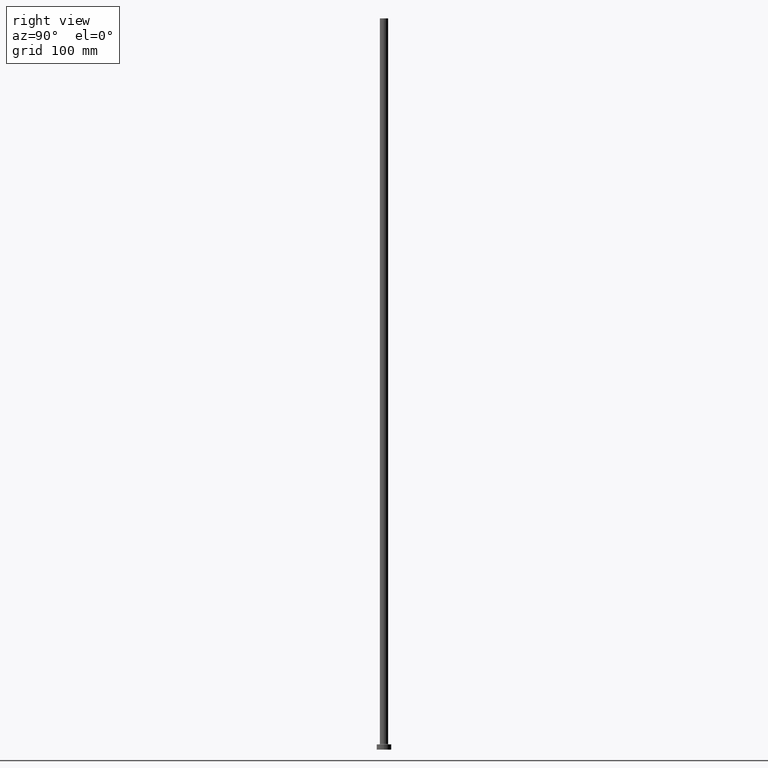
[diagram: clean part render]
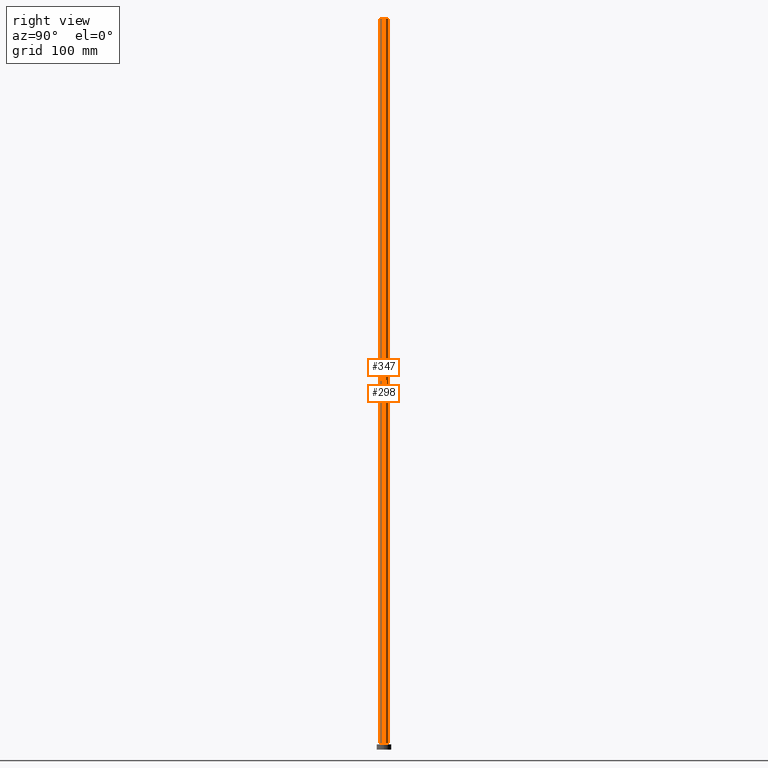
[diagram: same view with one multi-face feature highlighted, each face labeled with its STEP entity id]
A machine part, right view. The highlighted faces form ONE feature: a constant-radius fillet chain: 2 tangent blend faces with common blend radius 4 mm. The faces share edges in the B-rep.
Their STEP definitions:
[1] entity #298 (Cylinder):
#5 = ORIENTED_EDGE ( 'NONE', *, *, #360, .F. ) ;
#18 = DIRECTION ( 'NONE',  ( -0.000000000000000000, -0.000000000000000000, -1.000000000000000000 ) ) ;
#40 = ORIENTED_EDGE ( 'NONE', *, *, #330, .F. ) ;
#57 = LINE ( 'NONE', #198, #251 ) ;
#62 = DIRECTION ( 'NONE',  ( -1.000000000000000000, 0.000000000000000000, 0.000000000000000000 ) ) ;
#70 = AXIS2_PLACEMENT_3D ( 'NONE', #158, #268, #407 ) ;
#82 = CARTESIAN_POINT ( 'NONE',  ( 4.000000000000000000, 4.898587196589412829E-16, 5.499999999999949374 ) ) ;
#111 = CARTESIAN_POINT ( 'NONE',  ( -4.000000000000000000, 0.000000000000000000, 700.0000000000000000 ) ) ;
#120 = CARTESIAN_POINT ( 'NONE',  ( 4.000000000000000000, 4.898587196589412829E-16, 700.0000000000000000 ) ) ;
#143 = DIRECTION ( 'NONE',  ( 0.000000000000000000, 0.000000000000000000, 1.000000000000000000 ) ) ;
#158 = CARTESIAN_POINT ( 'NONE',  ( 0.000000000000000000, 0.000000000000000000, 700.0000000000000000 ) ) ;
#170 = AXIS2_PLACEMENT_3D ( 'NONE', #448, #405, #62 ) ;
#176 = DIRECTION ( 'NONE',  ( 1.000000000000000000, 0.000000000000000000, 0.000000000000000000 ) ) ;
#179 = VERTEX_POINT ( 'NONE', #358 ) ;
#190 = AXIS2_PLACEMENT_3D ( 'NONE', #212, #143, #176 ) ;
#198 = CARTESIAN_POINT ( 'NONE',  ( -4.000000000000000000, 0.000000000000000000, 700.0000000000000000 ) ) ;
#200 = ORIENTED_EDGE ( 'NONE', *, *, #208, .T. ) ;
#201 = CYLINDRICAL_SURFACE ( 'NONE', #170, 4.000000000000000000 ) ;
#208 = EDGE_CURVE ( 'NONE', #230, #376, #328, .T. ) ;
#212 = CARTESIAN_POINT ( 'NONE',  ( 0.000000000000000000, 0.000000000000000000, 5.499999999999949374 ) ) ;
#230 = VERTEX_POINT ( 'NONE', #82 ) ;
#246 = VERTEX_POINT ( 'NONE', #111 ) ;
#251 = VECTOR ( 'NONE', #18, 1000.000000000000000 ) ;
#265 = FACE_OUTER_BOUND ( 'NONE', #398, .T. ) ;
#268 = DIRECTION ( 'NONE',  ( 0.000000000000000000, 0.000000000000000000, 1.000000000000000000 ) ) ;
#272 = EDGE_CURVE ( 'NONE', #179, #230, #433, .T. ) ;
#298 = ADVANCED_FACE ( 'NONE', ( #265 ), #201, .T. ) ;
#304 = VECTOR ( 'NONE', #443, 1000.000000000000000 ) ;
#311 = ORIENTED_EDGE ( 'NONE', *, *, #272, .T. ) ;
#328 = CIRCLE ( 'NONE', #190, 4.000000000000000000 ) ;
#330 = EDGE_CURVE ( 'NONE', #246, #376, #57, .T. ) ;
#358 = CARTESIAN_POINT ( 'NONE',  ( 4.000000000000000000, 4.898587196589412829E-16, 700.0000000000000000 ) ) ;
#359 = CIRCLE ( 'NONE', #70, 4.000000000000000000 ) ;
#360 = EDGE_CURVE ( 'NONE', #179, #246, #359, .T. ) ;
#376 = VERTEX_POINT ( 'NONE', #411 ) ;
#398 = EDGE_LOOP ( 'NONE', ( #5, #311, #200, #40 ) ) ;
#405 = DIRECTION ( 'NONE',  ( -0.000000000000000000, -0.000000000000000000, -1.000000000000000000 ) ) ;
#407 = DIRECTION ( 'NONE',  ( 1.000000000000000000, 0.000000000000000000, 0.000000000000000000 ) ) ;
#411 = CARTESIAN_POINT ( 'NONE',  ( -4.000000000000000000, 0.000000000000000000, 5.499999999999949374 ) ) ;
#433 = LINE ( 'NONE', #120, #304 ) ;
#443 = DIRECTION ( 'NONE',  ( -0.000000000000000000, -0.000000000000000000, -1.000000000000000000 ) ) ;
#448 = CARTESIAN_POINT ( 'NONE',  ( 0.000000000000000000, 0.000000000000000000, 700.0000000000000000 ) ) ;
[2] entity #347 (Cylinder):
#14 = DIRECTION ( 'NONE',  ( 0.000000000000000000, 0.000000000000000000, 1.000000000000000000 ) ) ;
#15 = EDGE_CURVE ( 'NONE', #376, #230, #383, .T. ) ;
#18 = DIRECTION ( 'NONE',  ( -0.000000000000000000, -0.000000000000000000, -1.000000000000000000 ) ) ;
#19 = CARTESIAN_POINT ( 'NONE',  ( 0.000000000000000000, 0.000000000000000000, 700.0000000000000000 ) ) ;
#24 = FACE_OUTER_BOUND ( 'NONE', #63, .T. ) ;
#51 = ORIENTED_EDGE ( 'NONE', *, *, #330, .T. ) ;
#57 = LINE ( 'NONE', #198, #251 ) ;
#63 = EDGE_LOOP ( 'NONE', ( #151, #254, #51, #382 ) ) ;
#80 = DIRECTION ( 'NONE',  ( 1.000000000000000000, 0.000000000000000000, 0.000000000000000000 ) ) ;
#82 = CARTESIAN_POINT ( 'NONE',  ( 4.000000000000000000, 4.898587196589412829E-16, 5.499999999999949374 ) ) ;
#108 = AXIS2_PLACEMENT_3D ( 'NONE', #216, #14, #80 ) ;
#111 = CARTESIAN_POINT ( 'NONE',  ( -4.000000000000000000, 0.000000000000000000, 700.0000000000000000 ) ) ;
#120 = CARTESIAN_POINT ( 'NONE',  ( 4.000000000000000000, 4.898587196589412829E-16, 700.0000000000000000 ) ) ;
#121 = DIRECTION ( 'NONE',  ( 0.000000000000000000, 0.000000000000000000, 1.000000000000000000 ) ) ;
#151 = ORIENTED_EDGE ( 'NONE', *, *, #272, .F. ) ;
#156 = DIRECTION ( 'NONE',  ( -0.000000000000000000, -0.000000000000000000, -1.000000000000000000 ) ) ;
#179 = VERTEX_POINT ( 'NONE', #358 ) ;
#193 = CYLINDRICAL_SURFACE ( 'NONE', #250, 4.000000000000000000 ) ;
#198 = CARTESIAN_POINT ( 'NONE',  ( -4.000000000000000000, 0.000000000000000000, 700.0000000000000000 ) ) ;
#216 = CARTESIAN_POINT ( 'NONE',  ( 0.000000000000000000, 0.000000000000000000, 5.499999999999949374 ) ) ;
#227 = AXIS2_PLACEMENT_3D ( 'NONE', #444, #121, #335 ) ;
#230 = VERTEX_POINT ( 'NONE', #82 ) ;
#246 = VERTEX_POINT ( 'NONE', #111 ) ;
#250 = AXIS2_PLACEMENT_3D ( 'NONE', #19, #156, #338 ) ;
#251 = VECTOR ( 'NONE', #18, 1000.000000000000000 ) ;
#254 = ORIENTED_EDGE ( 'NONE', *, *, #351, .F. ) ;
#272 = EDGE_CURVE ( 'NONE', #179, #230, #433, .T. ) ;
#304 = VECTOR ( 'NONE', #443, 1000.000000000000000 ) ;
#330 = EDGE_CURVE ( 'NONE', #246, #376, #57, .T. ) ;
#335 = DIRECTION ( 'NONE',  ( 1.000000000000000000, 0.000000000000000000, 0.000000000000000000 ) ) ;
#338 = DIRECTION ( 'NONE',  ( -1.000000000000000000, 0.000000000000000000, 0.000000000000000000 ) ) ;
#347 = ADVANCED_FACE ( 'NONE', ( #24 ), #193, .T. ) ;
#351 = EDGE_CURVE ( 'NONE', #246, #179, #458, .T. ) ;
#358 = CARTESIAN_POINT ( 'NONE',  ( 4.000000000000000000, 4.898587196589412829E-16, 700.0000000000000000 ) ) ;
#376 = VERTEX_POINT ( 'NONE', #411 ) ;
#382 = ORIENTED_EDGE ( 'NONE', *, *, #15, .T. ) ;
#383 = CIRCLE ( 'NONE', #108, 4.000000000000000000 ) ;
#411 = CARTESIAN_POINT ( 'NONE',  ( -4.000000000000000000, 0.000000000000000000, 5.499999999999949374 ) ) ;
#433 = LINE ( 'NONE', #120, #304 ) ;
#443 = DIRECTION ( 'NONE',  ( -0.000000000000000000, -0.000000000000000000, -1.000000000000000000 ) ) ;
#444 = CARTESIAN_POINT ( 'NONE',  ( 0.000000000000000000, 0.000000000000000000, 700.0000000000000000 ) ) ;
#458 = CIRCLE ( 'NONE', #227, 4.000000000000000000 ) ;